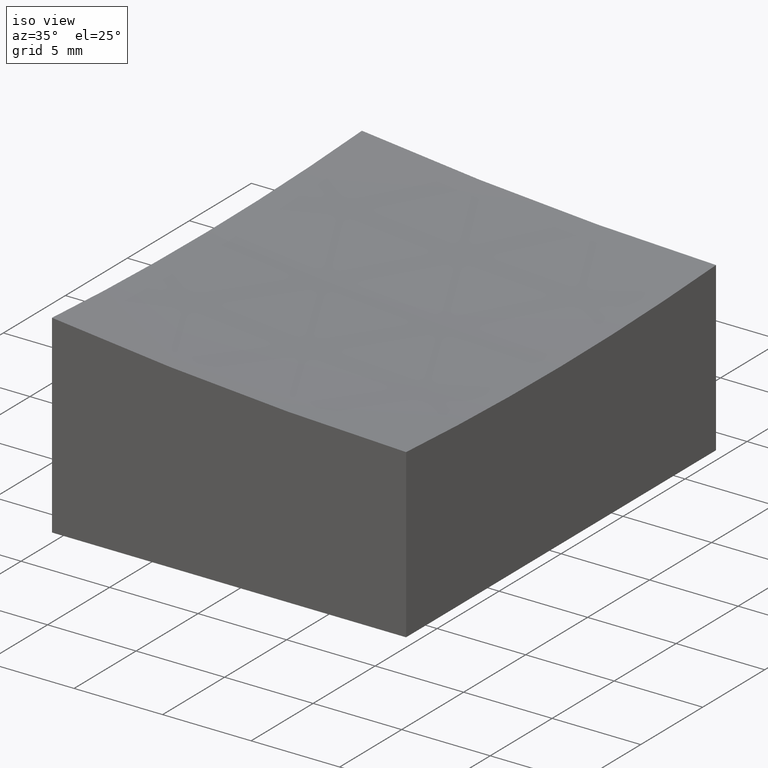
[diagram: clean part render]
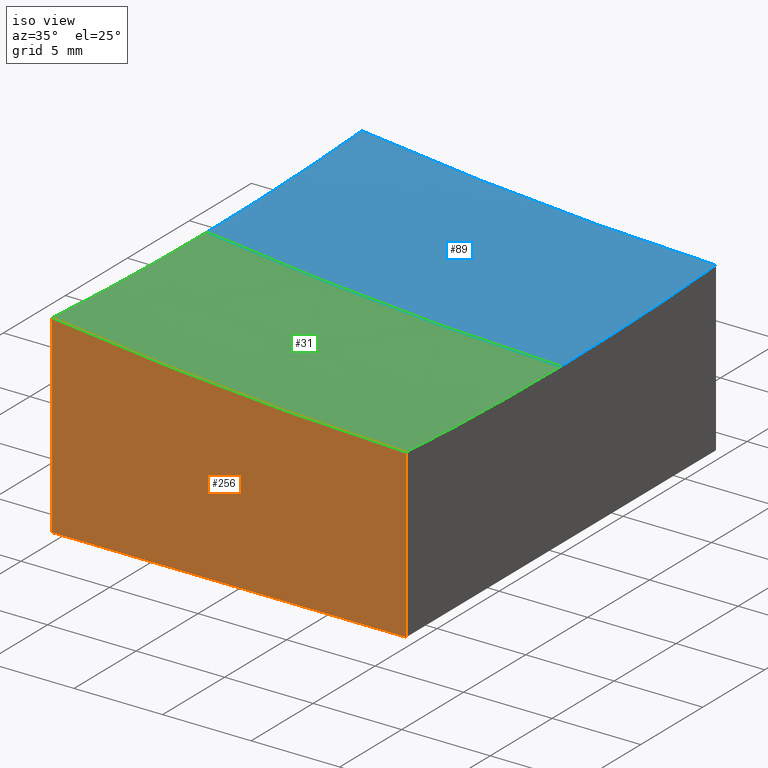
[diagram: same view with three faces highlighted in distinct colors, each labeled with its STEP entity id]
A machine part, iso view with three faces highlighted in distinct colors.
Their STEP definitions:

[orange] entity #256 — the highlighted planar face has unit normal (-0, 1, 0).
#10 = CIRCLE ( 'NONE', #274, 199.6089927833914146 ) ;
#11 = CARTESIAN_POINT ( 'NONE',  ( 10.00000000000000178, -12.50000000000000000, 10.00000000000000000 ) ) ;
#12 = ORIENTED_EDGE ( 'NONE', *, *, #13, .T. ) ;
#13 = EDGE_CURVE ( 'NONE', #118, #121, #237, .T. ) ;
#19 = LINE ( 'NONE', #275, #250 ) ;
#22 = CARTESIAN_POINT ( 'NONE',  ( -9.999999999999998224, -12.50000000000000355, 10.00000000000000000 ) ) ;
#38 = DIRECTION ( 'NONE',  ( -0.000000000000000000, -0.000000000000000000, -1.000000000000000000 ) ) ;
#44 = CARTESIAN_POINT ( 'NONE',  ( 10.00000000000000178, -12.50000000000000000, -10.00000000000000000 ) ) ;
#62 = CARTESIAN_POINT ( 'NONE',  ( -10.00000000000000000, -12.50000000000000355, 0.9627560280642266655 ) ) ;
#65 = VECTOR ( 'NONE', #94, 1000.000000000000000 ) ;
#70 = FACE_OUTER_BOUND ( 'NONE', #184, .T. ) ;
#75 = VERTEX_POINT ( 'NONE', #123 ) ;
#94 = DIRECTION ( 'NONE',  ( 1.000000000000000000, 1.734723475976807094E-16, -0.000000000000000000 ) ) ;
#103 = DIRECTION ( 'NONE',  ( -1.000000000000000000, -1.738121566355747637E-16, 0.000000000000000000 ) ) ;
#106 = CARTESIAN_POINT ( 'NONE',  ( -9.999999999999998224, -12.50000000000000355, -10.00000000000000000 ) ) ;
#112 = DIRECTION ( 'NONE',  ( -1.000000000000000000, -1.734723475976807094E-16, 0.000000000000000000 ) ) ;
#118 = VERTEX_POINT ( 'NONE', #106 ) ;
#120 = ORIENTED_EDGE ( 'NONE', *, *, #158, .T. ) ;
#121 = VERTEX_POINT ( 'NONE', #149 ) ;
#123 = CARTESIAN_POINT ( 'NONE',  ( 10.00000000000000178, -12.50000000000000000, -0.5463605280738026426 ) ) ;
#125 = CARTESIAN_POINT ( 'NONE',  ( 15.00000000000002842, -12.49999999999999822, 199.0000000000000000 ) ) ;
#139 = ORIENTED_EDGE ( 'NONE', *, *, #189, .T. ) ;
#140 = VERTEX_POINT ( 'NONE', #62 ) ;
#141 = EDGE_CURVE ( 'NONE', #75, #121, #19, .T. ) ;
#149 = CARTESIAN_POINT ( 'NONE',  ( 10.00000000000000178, -12.50000000000000000, -10.00000000000000000 ) ) ;
#158 = EDGE_CURVE ( 'NONE', #75, #140, #10, .T. ) ;
#163 = DIRECTION ( 'NONE',  ( -1.734723475976807094E-16, 1.000000000000000000, 0.000000000000000000 ) ) ;
#177 = AXIS2_PLACEMENT_3D ( 'NONE', #11, #263, #112 ) ;
#184 = EDGE_LOOP ( 'NONE', ( #202, #120, #139, #12 ) ) ;
#189 = EDGE_CURVE ( 'NONE', #140, #118, #231, .T. ) ;
#197 = PLANE ( 'NONE',  #177 ) ;
#202 = ORIENTED_EDGE ( 'NONE', *, *, #141, .F. ) ;
#227 = DIRECTION ( 'NONE',  ( -0.000000000000000000, -0.000000000000000000, -1.000000000000000000 ) ) ;
#231 = LINE ( 'NONE', #22, #261 ) ;
#237 = LINE ( 'NONE', #44, #65 ) ;
#250 = VECTOR ( 'NONE', #38, 1000.000000000000000 ) ;
#256 = ADVANCED_FACE ( 'NONE', ( #70 ), #197, .F. ) ;
#261 = VECTOR ( 'NONE', #227, 1000.000000000000000 ) ;
#263 = DIRECTION ( 'NONE',  ( -1.734723475976807094E-16, 1.000000000000000000, 0.000000000000000000 ) ) ;
#274 = AXIS2_PLACEMENT_3D ( 'NONE', #125, #163, #103 ) ;
#275 = CARTESIAN_POINT ( 'NONE',  ( 10.00000000000000178, -12.50000000000000000, 10.00000000000000000 ) ) ;

[blue] entity #89 — the highlighted spherical surface has radius 200 mm.
#5 = AXIS2_PLACEMENT_3D ( 'NONE', #67, #221, #7 ) ;
#7 = DIRECTION ( 'NONE',  ( 1.000000000000000000, 1.224646799147353207E-16, 0.000000000000000000 ) ) ;
#16 = CIRCLE ( 'NONE', #268, 199.6089927833914146 ) ;
#21 = CIRCLE ( 'NONE', #5, 200.0000000000000000 ) ;
#34 = ORIENTED_EDGE ( 'NONE', *, *, #137, .F. ) ;
#52 = VERTEX_POINT ( 'NONE', #91 ) ;
#59 = DIRECTION ( 'NONE',  ( 1.000000000000000000, 0.000000000000000000, 0.000000000000000000 ) ) ;
#63 = SPHERICAL_SURFACE ( 'NONE', #196, 200.0000000000000000 ) ;
#67 = CARTESIAN_POINT ( 'NONE',  ( 15.00000000000002665, 0.000000000000000000, 199.0000000000000000 ) ) ;
#77 = EDGE_LOOP ( 'NONE', ( #245, #199, #34, #143 ) ) ;
#85 = DIRECTION ( 'NONE',  ( 1.000000000000000000, 0.000000000000000000, -1.387778780781445676E-16 ) ) ;
#86 = AXIS2_PLACEMENT_3D ( 'NONE', #249, #59, #146 ) ;
#89 = ADVANCED_FACE ( 'NONE', ( #188 ), #63, .F. ) ;
#91 = CARTESIAN_POINT ( 'NONE',  ( 10.00000000000000178, -6.123233995736765296E-16, -0.9374902313220578876 ) ) ;
#102 = CARTESIAN_POINT ( 'NONE',  ( 10.00000000000000178, 0.000000000000000000, 199.0000000000000000 ) ) ;
#104 = CIRCLE ( 'NONE', #86, 198.4313483298443259 ) ;
#108 = EDGE_CURVE ( 'NONE', #267, #246, #16, .T. ) ;
#137 = EDGE_CURVE ( 'NONE', #246, #52, #182, .T. ) ;
#138 = CARTESIAN_POINT ( 'NONE',  ( -9.999999999999996447, 12.49999999999999645, 0.9627560280642266655 ) ) ;
#143 = ORIENTED_EDGE ( 'NONE', *, *, #108, .F. ) ;
#146 = DIRECTION ( 'NONE',  ( 0.000000000000000000, 0.000000000000000000, -1.000000000000000000 ) ) ;
#147 = DIRECTION ( 'NONE',  ( 0.000000000000000000, -1.000000000000000000, -0.000000000000000000 ) ) ;
#155 = CARTESIAN_POINT ( 'NONE',  ( -9.999999999999996447, -3.061616997868382648E-15, 0.5686516701556842968 ) ) ;
#166 = DIRECTION ( 'NONE',  ( 0.000000000000000000, 0.000000000000000000, 1.000000000000000000 ) ) ;
#167 = CARTESIAN_POINT ( 'NONE',  ( 15.00000000000002665, 0.000000000000000000, 199.0000000000000000 ) ) ;
#176 = CARTESIAN_POINT ( 'NONE',  ( 10.00000000000000178, 12.50000000000000000, -0.5463605280738026426 ) ) ;
#182 = CIRCLE ( 'NONE', #187, 199.9374902313220730 ) ;
#186 = CARTESIAN_POINT ( 'NONE',  ( 15.00000000000002487, 12.50000000000000178, 199.0000000000000000 ) ) ;
#187 = AXIS2_PLACEMENT_3D ( 'NONE', #102, #209, #166 ) ;
#188 = FACE_OUTER_BOUND ( 'NONE', #77, .T. ) ;
#196 = AXIS2_PLACEMENT_3D ( 'NONE', #167, #147, #85 ) ;
#199 = ORIENTED_EDGE ( 'NONE', *, *, #266, .T. ) ;
#209 = DIRECTION ( 'NONE',  ( -1.000000000000000000, 0.000000000000000000, 0.000000000000000000 ) ) ;
#221 = DIRECTION ( 'NONE',  ( 1.224646799147353207E-16, -1.000000000000000000, -1.487096486582537186E-32 ) ) ;
#236 = EDGE_CURVE ( 'NONE', #270, #267, #104, .T. ) ;
#245 = ORIENTED_EDGE ( 'NONE', *, *, #236, .F. ) ;
#246 = VERTEX_POINT ( 'NONE', #176 ) ;
#249 = CARTESIAN_POINT ( 'NONE',  ( -9.999999999999998224, 0.000000000000000000, 199.0000000000000000 ) ) ;
#266 = EDGE_CURVE ( 'NONE', #270, #52, #21, .T. ) ;
#267 = VERTEX_POINT ( 'NONE', #138 ) ;
#268 = AXIS2_PLACEMENT_3D ( 'NONE', #186, #276, #271 ) ;
#270 = VERTEX_POINT ( 'NONE', #155 ) ;
#271 = DIRECTION ( 'NONE',  ( 1.000000000000000000, 1.738121566355747637E-16, 0.000000000000000000 ) ) ;
#276 = DIRECTION ( 'NONE',  ( 1.734723475976807094E-16, -1.000000000000000000, 0.000000000000000000 ) ) ;

[green] entity #31 — the highlighted spherical surface has radius 200 mm.
#5 = AXIS2_PLACEMENT_3D ( 'NONE', #67, #221, #7 ) ;
#6 = CARTESIAN_POINT ( 'NONE',  ( 15.00000000000002665, 0.000000000000000000, 199.0000000000000000 ) ) ;
#7 = DIRECTION ( 'NONE',  ( 1.000000000000000000, 1.224646799147353207E-16, 0.000000000000000000 ) ) ;
#10 = CIRCLE ( 'NONE', #274, 199.6089927833914146 ) ;
#14 = EDGE_CURVE ( 'NONE', #52, #75, #53, .T. ) ;
#21 = CIRCLE ( 'NONE', #5, 200.0000000000000000 ) ;
#24 = CARTESIAN_POINT ( 'NONE',  ( 10.00000000000000178, 0.000000000000000000, 199.0000000000000000 ) ) ;
#31 = ADVANCED_FACE ( 'NONE', ( #133 ), #215, .F. ) ;
#32 = CIRCLE ( 'NONE', #217, 198.4313483298443259 ) ;
#37 = DIRECTION ( 'NONE',  ( 1.000000000000000000, 0.000000000000000000, 0.000000000000000000 ) ) ;
#39 = DIRECTION ( 'NONE',  ( 0.000000000000000000, 0.000000000000000000, -1.000000000000000000 ) ) ;
#51 = ORIENTED_EDGE ( 'NONE', *, *, #158, .F. ) ;
#52 = VERTEX_POINT ( 'NONE', #91 ) ;
#53 = CIRCLE ( 'NONE', #277, 199.9374902313220730 ) ;
#62 = CARTESIAN_POINT ( 'NONE',  ( -10.00000000000000000, -12.50000000000000355, 0.9627560280642266655 ) ) ;
#67 = CARTESIAN_POINT ( 'NONE',  ( 15.00000000000002665, 0.000000000000000000, 199.0000000000000000 ) ) ;
#75 = VERTEX_POINT ( 'NONE', #123 ) ;
#91 = CARTESIAN_POINT ( 'NONE',  ( 10.00000000000000178, -6.123233995736765296E-16, -0.9374902313220578876 ) ) ;
#103 = DIRECTION ( 'NONE',  ( -1.000000000000000000, -1.738121566355747637E-16, 0.000000000000000000 ) ) ;
#109 = DIRECTION ( 'NONE',  ( 0.000000000000000000, -1.000000000000000000, -0.000000000000000000 ) ) ;
#111 = DIRECTION ( 'NONE',  ( -1.000000000000000000, 0.000000000000000000, 0.000000000000000000 ) ) ;
#123 = CARTESIAN_POINT ( 'NONE',  ( 10.00000000000000178, -12.50000000000000000, -0.5463605280738026426 ) ) ;
#125 = CARTESIAN_POINT ( 'NONE',  ( 15.00000000000002842, -12.49999999999999822, 199.0000000000000000 ) ) ;
#133 = FACE_OUTER_BOUND ( 'NONE', #226, .T. ) ;
#140 = VERTEX_POINT ( 'NONE', #62 ) ;
#155 = CARTESIAN_POINT ( 'NONE',  ( -9.999999999999996447, -3.061616997868382648E-15, 0.5686516701556842968 ) ) ;
#158 = EDGE_CURVE ( 'NONE', #75, #140, #10, .T. ) ;
#161 = ORIENTED_EDGE ( 'NONE', *, *, #266, .F. ) ;
#162 = ORIENTED_EDGE ( 'NONE', *, *, #14, .F. ) ;
#163 = DIRECTION ( 'NONE',  ( -1.734723475976807094E-16, 1.000000000000000000, 0.000000000000000000 ) ) ;
#192 = DIRECTION ( 'NONE',  ( 0.000000000000000000, 0.000000000000000000, 1.000000000000000000 ) ) ;
#200 = ORIENTED_EDGE ( 'NONE', *, *, #214, .F. ) ;
#208 = AXIS2_PLACEMENT_3D ( 'NONE', #6, #109, #219 ) ;
#214 = EDGE_CURVE ( 'NONE', #140, #270, #32, .T. ) ;
#215 = SPHERICAL_SURFACE ( 'NONE', #208, 200.0000000000000000 ) ;
#217 = AXIS2_PLACEMENT_3D ( 'NONE', #247, #37, #39 ) ;
#219 = DIRECTION ( 'NONE',  ( 1.000000000000000000, 0.000000000000000000, -1.387778780781445676E-16 ) ) ;
#221 = DIRECTION ( 'NONE',  ( 1.224646799147353207E-16, -1.000000000000000000, -1.487096486582537186E-32 ) ) ;
#226 = EDGE_LOOP ( 'NONE', ( #161, #200, #51, #162 ) ) ;
#247 = CARTESIAN_POINT ( 'NONE',  ( -9.999999999999998224, 0.000000000000000000, 199.0000000000000000 ) ) ;
#266 = EDGE_CURVE ( 'NONE', #270, #52, #21, .T. ) ;
#270 = VERTEX_POINT ( 'NONE', #155 ) ;
#274 = AXIS2_PLACEMENT_3D ( 'NONE', #125, #163, #103 ) ;
#277 = AXIS2_PLACEMENT_3D ( 'NONE', #24, #111, #192 ) ;